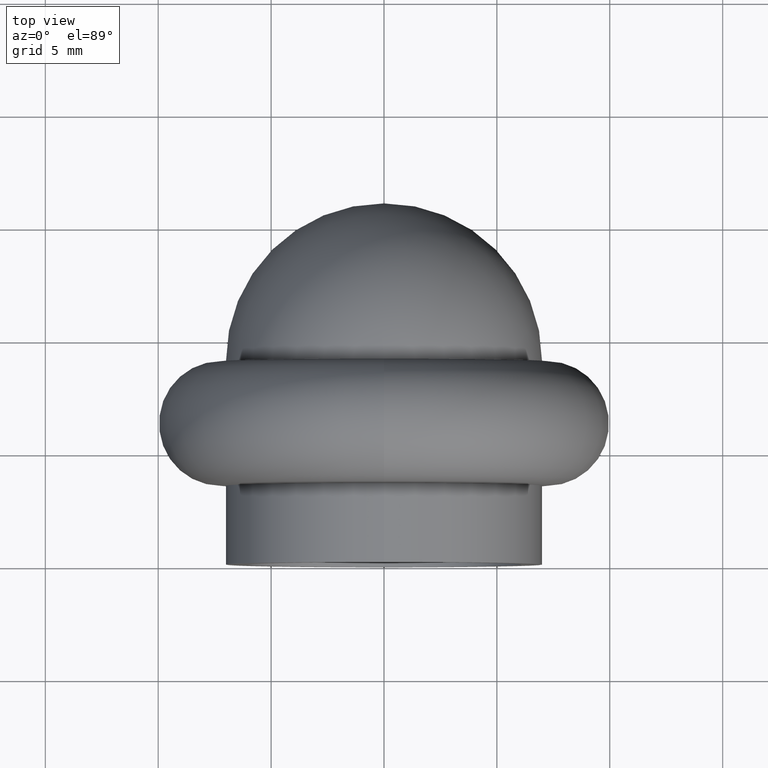
[diagram: clean part render]
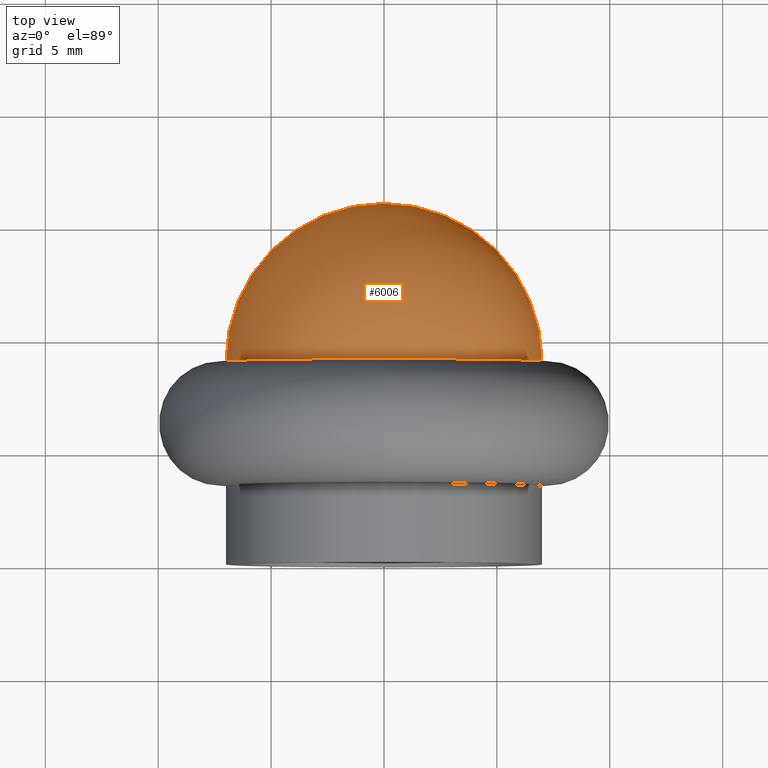
[diagram: same view with one face highlighted and labeled with its STEP entity id]
A machine part, top view. The second image highlights one B-rep face of the part: STEP entity #6006.
In plain terms, the highlighted spherical surface has radius 7 mm.
Its self-contained STEP definition (entity closure, byte-faithful):
#761 = CARTESIAN_POINT ( 'NONE',  ( 4.286263797015736100E-016, 16.00000000000000000, 0.0000000000000000000 ) ) ;
#1296 = CIRCLE ( 'NONE', #7474, 6.999999999999999100 ) ;
#1428 = ORIENTED_EDGE ( 'NONE', *, *, #9034, .F. ) ;
#1457 = CIRCLE ( 'NONE', #9001, 7.000000000000000000 ) ;
#1742 = ORIENTED_EDGE ( 'NONE', *, *, #5647, .T. ) ;
#1987 = ORIENTED_EDGE ( 'NONE', *, *, #4808, .F. ) ;
#2387 = DIRECTION ( 'NONE',  ( 0.0000000000000000000, 0.0000000000000000000, -1.000000000000000000 ) ) ;
#2393 = DIRECTION ( 'NONE',  ( 1.000000000000000000, 0.0000000000000000000, -1.224646799147353200E-016 ) ) ;
#2425 = DIRECTION ( 'NONE',  ( -0.0000000000000000000, -1.000000000000000000, -0.0000000000000000000 ) ) ;
#2446 = DIRECTION ( 'NONE',  ( 1.224646799147353200E-016, -0.0000000000000000000, 1.000000000000000000 ) ) ;
#2465 = CARTESIAN_POINT ( 'NONE',  ( 0.0000000000000000000, 8.999999999999976900, 0.0000000000000000000 ) ) ;
#2681 = CARTESIAN_POINT ( 'NONE',  ( 0.0000000000000000000, 9.000000000000001800, 0.0000000000000000000 ) ) ;
#3992 = CARTESIAN_POINT ( 'NONE',  ( 0.0000000000000000000, 9.000000000000001800, 0.0000000000000000000 ) ) ;
#4808 = EDGE_CURVE ( 'NONE', #5568, #10805, #1457, .T. ) ;
#4937 = DIRECTION ( 'NONE',  ( -1.000000000000000000, 0.0000000000000000000, 0.0000000000000000000 ) ) ;
#5238 = CARTESIAN_POINT ( 'NONE',  ( -6.999999999999999100, 8.999999999999976900, 8.572527594031473200E-016 ) ) ;
#5361 = AXIS2_PLACEMENT_3D ( 'NONE', #8925, #8557, #7451 ) ;
#5568 = VERTEX_POINT ( 'NONE', #11553 ) ;
#5647 = EDGE_CURVE ( 'NONE', #8725, #10805, #9962, .T. ) ;
#5677 = SPHERICAL_SURFACE ( 'NONE', #5361, 6.999999999999999100 ) ;
#6006 = ADVANCED_FACE ( 'NONE', ( #8594 ), #5677, .T. ) ;
#7451 = DIRECTION ( 'NONE',  ( 1.000000000000000000, 0.0000000000000000000, 0.0000000000000000000 ) ) ;
#7474 = AXIS2_PLACEMENT_3D ( 'NONE', #3992, #10384, #4937 ) ;
#7529 = AXIS2_PLACEMENT_3D ( 'NONE', #2681, #2446, #2393 ) ;
#7642 = EDGE_LOOP ( 'NONE', ( #1428, #1742, #1987 ) ) ;
#8557 = DIRECTION ( 'NONE',  ( 0.0000000000000000000, 0.0000000000000000000, 1.000000000000000000 ) ) ;
#8594 = FACE_OUTER_BOUND ( 'NONE', #7642, .T. ) ;
#8725 = VERTEX_POINT ( 'NONE', #761 ) ;
#8925 = CARTESIAN_POINT ( 'NONE',  ( 0.0000000000000000000, 9.000000000000001800, 0.0000000000000000000 ) ) ;
#9001 = AXIS2_PLACEMENT_3D ( 'NONE', #2465, #2425, #2387 ) ;
#9034 = EDGE_CURVE ( 'NONE', #8725, #5568, #1296, .T. ) ;
#9962 = CIRCLE ( 'NONE', #7529, 6.999999999999999100 ) ;
#10384 = DIRECTION ( 'NONE',  ( 0.0000000000000000000, 0.0000000000000000000, -1.000000000000000000 ) ) ;
#10805 = VERTEX_POINT ( 'NONE', #5238 ) ;
#11553 = CARTESIAN_POINT ( 'NONE',  ( 6.999999999999999100, 8.999999999999976900, 0.0000000000000000000 ) ) ;